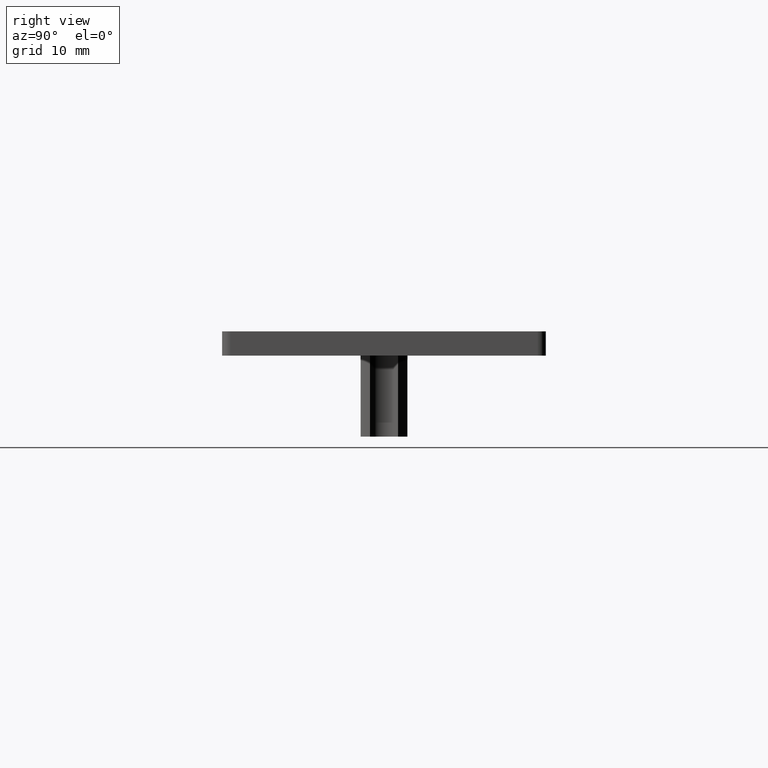
[diagram: clean part render]
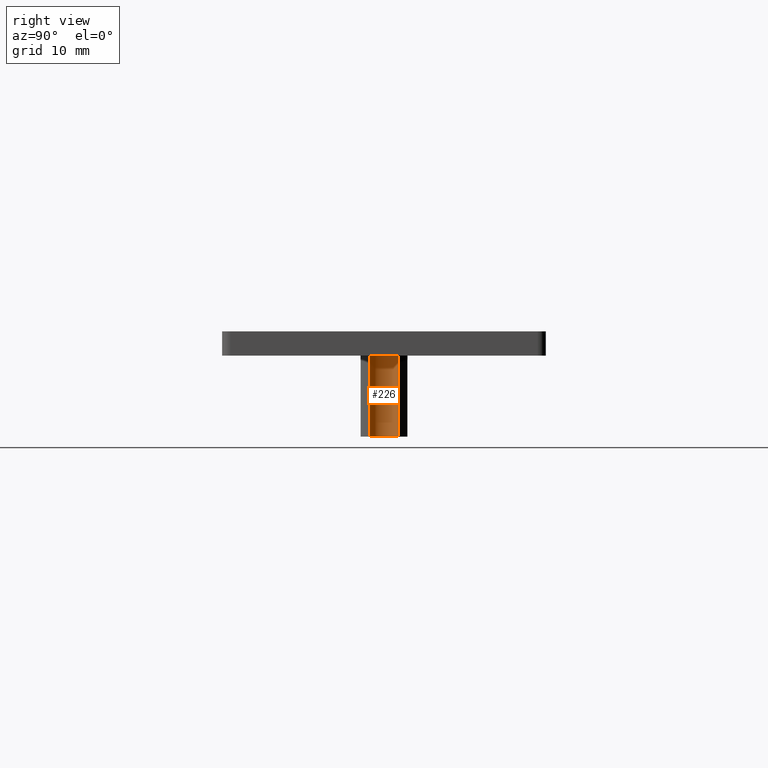
[diagram: same view with one face highlighted and labeled with its STEP entity id]
A machine part, right view. The second image highlights one B-rep face of the part: STEP entity #226.
In plain terms, the highlighted cylindrical surface (edge-blend (fillet) strip) has radius 1.85 mm, axis along (0, 0, 1).
Its self-contained STEP definition (entity closure, byte-faithful):
#166=CARTESIAN_POINT('',(22.895000009413462,18.265180140332681,-2.220446E-015));
#167=VERTEX_POINT('',#166);
#176=CARTESIAN_POINT('',(22.895000009413462,18.265180140332681,-10.000000000000002));
#177=VERTEX_POINT('',#176);
#185=CARTESIAN_POINT('',(22.895000009413462,18.265180140332681,-10.000000000000002));
#186=DIRECTION('',(0.0,0.0,1.0));
#187=VECTOR('',#186,10.0);
#188=LINE('',#185,#187);
#189=EDGE_CURVE('',#177,#167,#188,.T.);
#194=CARTESIAN_POINT('',(23.537573004880834,19.999999999999993,-10.000000010000004));
#195=DIRECTION('',(0.0,1.224647E-016,1.0));
#196=DIRECTION('',(1.0,0.0,0.0));
#197=AXIS2_PLACEMENT_3D('',#194,#195,#196);
#198=CYLINDRICAL_SURFACE('',#197,1.850000000000001);
#199=CARTESIAN_POINT('',(22.895000009413465,21.734819859667304,-2.664535E-015));
#200=VERTEX_POINT('',#199);
#201=CARTESIAN_POINT('',(23.537573004880834,19.999999999999993,-2.220446E-015));
#202=DIRECTION('',(0.0,-1.224647E-016,-1.0));
#203=DIRECTION('',(0.0,-1.0,1.224647E-016));
#204=AXIS2_PLACEMENT_3D('',#201,#202,#203);
#205=CIRCLE('',#204,1.850000000000003);
#206=EDGE_CURVE('',#167,#200,#205,.T.);
#207=ORIENTED_EDGE('',*,*,#206,.F.);
#208=ORIENTED_EDGE('',*,*,#189,.F.);
#209=CARTESIAN_POINT('',(22.895000009413465,21.734819859667297,-10.000000000000004));
#210=VERTEX_POINT('',#209);
#211=CARTESIAN_POINT('',(23.537573004880834,19.999999999999993,-10.000000000000004));
#212=DIRECTION('',(0.0,-1.224647E-016,-1.0));
#213=DIRECTION('',(0.0,-1.0,1.224647E-016));
#214=AXIS2_PLACEMENT_3D('',#211,#212,#213);
#215=CIRCLE('',#214,1.850000000000003);
#216=EDGE_CURVE('',#177,#210,#215,.T.);
#217=ORIENTED_EDGE('',*,*,#216,.T.);
#218=CARTESIAN_POINT('',(22.895000009413465,21.734819859667297,-10.000000000000004));
#219=DIRECTION('',(0.0,0.0,1.0));
#220=VECTOR('',#219,10.0);
#221=LINE('',#218,#220);
#222=EDGE_CURVE('',#210,#200,#221,.T.);
#223=ORIENTED_EDGE('',*,*,#222,.T.);
#224=EDGE_LOOP('',(#207,#208,#217,#223));
#225=FACE_OUTER_BOUND('',#224,.T.);
#226=ADVANCED_FACE('',(#225),#198,.F.);